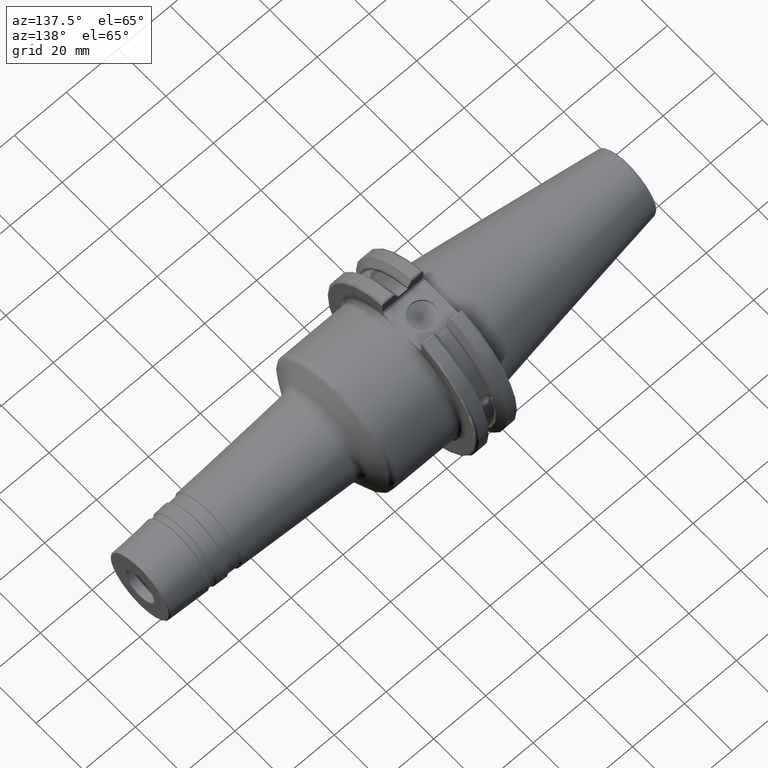
[diagram: clean part render]
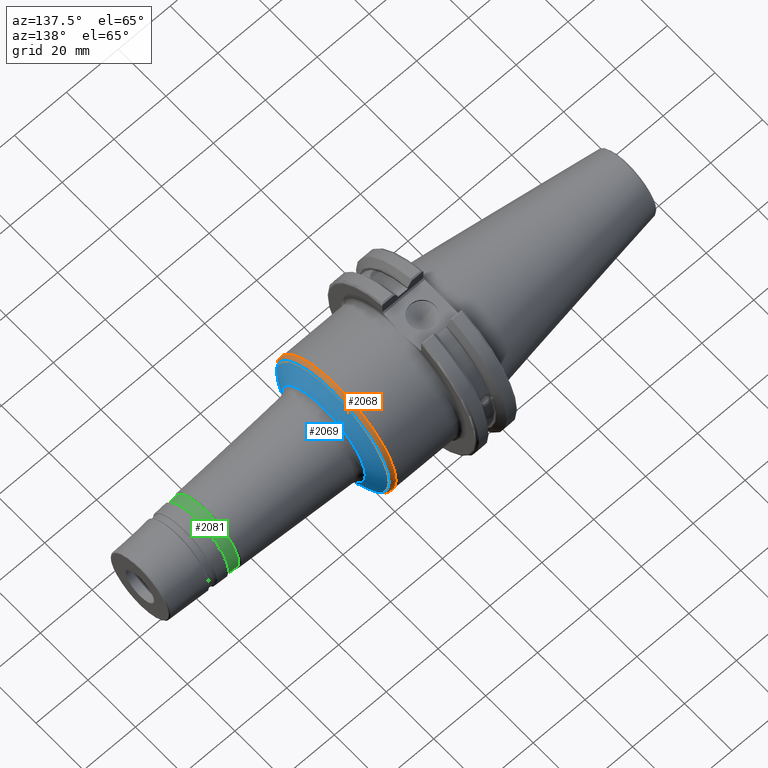
[diagram: same view with three faces highlighted in distinct colors, each labeled with its STEP entity id]
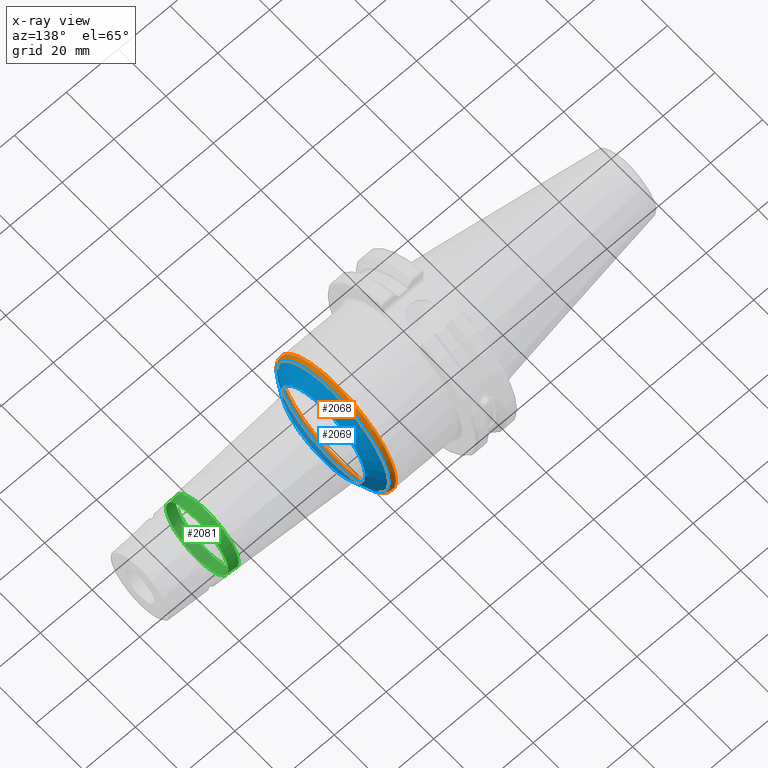
[diagram: x-ray of the same camera — body ghosted, the three highlighted faces saturated]
A machine part, auxiliary view with three faces highlighted in distinct colors.
The next image is the same camera in x-ray (body ghosted, the three faces saturated) — at least one of them is partly hidden behind the body in this view.
Their STEP definitions:

[orange] entity #2068 — the highlighted toroidal blend (fillet) surface has major radius 22.75 mm and minor (blend) radius 2 mm.
#85=TOROIDAL_SURFACE('',#2207,22.75,2.);
#187=FACE_OUTER_BOUND('',#295,.T.);
#295=EDGE_LOOP('',(#1394,#1395,#1396,#1397,#1398,#1399,#1400,#1401));
#615=CIRCLE('',#2202,24.75);
#616=CIRCLE('',#2203,24.75);
#619=CIRCLE('',#2206,24.75);
#620=CIRCLE('',#2208,23.75);
#621=CIRCLE('',#2209,23.75);
#622=CIRCLE('',#2210,2.);
#623=CIRCLE('',#2211,23.75);
#795=VERTEX_POINT('',#3305);
#796=VERTEX_POINT('',#3306);
#797=VERTEX_POINT('',#3308);
#799=VERTEX_POINT('',#3316);
#800=VERTEX_POINT('',#3317);
#801=VERTEX_POINT('',#3319);
#1039=EDGE_CURVE('',#795,#796,#615,.T.);
#1040=EDGE_CURVE('',#797,#795,#616,.T.);
#1044=EDGE_CURVE('',#796,#797,#619,.T.);
#1045=EDGE_CURVE('',#799,#800,#620,.T.);
#1046=EDGE_CURVE('',#800,#801,#621,.T.);
#1047=EDGE_CURVE('',#801,#796,#622,.T.);
#1048=EDGE_CURVE('',#801,#799,#623,.T.);
#1394=ORIENTED_EDGE('',*,*,#1045,.T.);
#1395=ORIENTED_EDGE('',*,*,#1046,.T.);
#1396=ORIENTED_EDGE('',*,*,#1047,.T.);
#1397=ORIENTED_EDGE('',*,*,#1044,.T.);
#1398=ORIENTED_EDGE('',*,*,#1040,.T.);
#1399=ORIENTED_EDGE('',*,*,#1039,.T.);
#1400=ORIENTED_EDGE('',*,*,#1047,.F.);
#1401=ORIENTED_EDGE('',*,*,#1048,.T.);
#2068=ADVANCED_FACE('',(#187),#85,.T.);
#2202=AXIS2_PLACEMENT_3D('',#3307,#2519,#2520);
#2203=AXIS2_PLACEMENT_3D('',#3309,#2521,#2522);
#2206=AXIS2_PLACEMENT_3D('',#3314,#2528,#2529);
#2207=AXIS2_PLACEMENT_3D('',#3315,#2530,#2531);
#2208=AXIS2_PLACEMENT_3D('',#3318,#2532,#2533);
#2209=AXIS2_PLACEMENT_3D('',#3320,#2534,#2535);
#2210=AXIS2_PLACEMENT_3D('',#3321,#2536,#2537);
#2211=AXIS2_PLACEMENT_3D('',#3322,#2538,#2539);
#2519=DIRECTION('center_axis',(1.,0.,0.));
#2520=DIRECTION('ref_axis',(0.,-1.,1.83697019872103E-16));
#2521=DIRECTION('center_axis',(1.,0.,0.));
#2522=DIRECTION('ref_axis',(0.,-1.,1.83697019872103E-16));
#2528=DIRECTION('center_axis',(1.,0.,0.));
#2529=DIRECTION('ref_axis',(0.,-1.,1.83697019872103E-16));
#2530=DIRECTION('center_axis',(1.,0.,0.));
#2531=DIRECTION('ref_axis',(0.,0.,-1.));
#2532=DIRECTION('center_axis',(-1.,0.,0.));
#2533=DIRECTION('ref_axis',(0.,-1.,3.06161699786838E-17));
#2534=DIRECTION('center_axis',(-1.,0.,0.));
#2535=DIRECTION('ref_axis',(0.,-1.,3.06161699786838E-17));
#2536=DIRECTION('center_axis',(0.,-1.,-1.22464679914735E-16));
#2537=DIRECTION('ref_axis',(0.,-1.22464679914735E-16,1.));
#2538=DIRECTION('center_axis',(-1.,0.,0.));
#2539=DIRECTION('ref_axis',(0.,-1.,3.06161699786838E-17));
#3305=CARTESIAN_POINT('',(43.8907938474164,24.75,-1.51550041394485E-15));
#3306=CARTESIAN_POINT('',(43.8907938474164,-3.0310008278897E-15,24.75));
#3307=CARTESIAN_POINT('Origin',(43.8907938474164,0.,0.));
#3308=CARTESIAN_POINT('',(43.8907938474164,-24.75,-3.0310008278897E-15));
#3309=CARTESIAN_POINT('Origin',(43.8907938474164,0.,0.));
#3314=CARTESIAN_POINT('Origin',(43.8907938474164,0.,0.));
#3315=CARTESIAN_POINT('Origin',(43.8907938474164,0.,0.));
#3316=CARTESIAN_POINT('',(45.6228446549853,23.75,-7.27134036993741E-15));
#3317=CARTESIAN_POINT('',(45.6228446549853,-23.75,-2.90853614797496E-15));
#3318=CARTESIAN_POINT('Origin',(45.6228446549853,0.,-3.6356701849687E-15));
#3319=CARTESIAN_POINT('',(45.6228446549853,-2.90853614797496E-15,23.75));
#3320=CARTESIAN_POINT('Origin',(45.6228446549853,0.,-3.6356701849687E-15));
#3321=CARTESIAN_POINT('Origin',(43.8907938474164,-2.78607146806023E-15,
22.75));
#3322=CARTESIAN_POINT('Origin',(45.6228446549853,0.,-3.6356701849687E-15));

[blue] entity #2069 — the highlighted conical surface has half-angle 60 deg.
#188=FACE_OUTER_BOUND('',#296,.T.);
#296=EDGE_LOOP('',(#1402,#1403,#1404,#1405,#1406,#1407,#1408,#1409));
#415=LINE('',#3329,#514);
#514=VECTOR('',#2546,20.4592722749064);
#620=CIRCLE('',#2208,23.75);
#621=CIRCLE('',#2209,23.75);
#623=CIRCLE('',#2211,23.75);
#624=CIRCLE('',#2213,17.5791848368622);
#625=CIRCLE('',#2214,17.5791848368622);
#626=CIRCLE('',#2215,17.5791848368622);
#799=VERTEX_POINT('',#3316);
#800=VERTEX_POINT('',#3317);
#801=VERTEX_POINT('',#3319);
#802=VERTEX_POINT('',#3324);
#803=VERTEX_POINT('',#3325);
#804=VERTEX_POINT('',#3327);
#1045=EDGE_CURVE('',#799,#800,#620,.T.);
#1046=EDGE_CURVE('',#800,#801,#621,.T.);
#1048=EDGE_CURVE('',#801,#799,#623,.T.);
#1049=EDGE_CURVE('',#802,#803,#624,.T.);
#1050=EDGE_CURVE('',#804,#802,#625,.T.);
#1051=EDGE_CURVE('',#804,#800,#415,.T.);
#1052=EDGE_CURVE('',#803,#804,#626,.T.);
#1402=ORIENTED_EDGE('',*,*,#1049,.F.);
#1403=ORIENTED_EDGE('',*,*,#1050,.F.);
#1404=ORIENTED_EDGE('',*,*,#1051,.T.);
#1405=ORIENTED_EDGE('',*,*,#1045,.F.);
#1406=ORIENTED_EDGE('',*,*,#1048,.F.);
#1407=ORIENTED_EDGE('',*,*,#1046,.F.);
#1408=ORIENTED_EDGE('',*,*,#1051,.F.);
#1409=ORIENTED_EDGE('',*,*,#1052,.F.);
#2042=CONICAL_SURFACE('',#2212,20.4592722749064,1.0471975511966);
#2069=ADVANCED_FACE('',(#188),#2042,.T.);
#2208=AXIS2_PLACEMENT_3D('',#3318,#2532,#2533);
#2209=AXIS2_PLACEMENT_3D('',#3320,#2534,#2535);
#2211=AXIS2_PLACEMENT_3D('',#3322,#2538,#2539);
#2212=AXIS2_PLACEMENT_3D('',#3323,#2540,#2541);
#2213=AXIS2_PLACEMENT_3D('',#3326,#2542,#2543);
#2214=AXIS2_PLACEMENT_3D('',#3328,#2544,#2545);
#2215=AXIS2_PLACEMENT_3D('',#3330,#2547,#2548);
#2532=DIRECTION('center_axis',(-1.,0.,0.));
#2533=DIRECTION('ref_axis',(0.,-1.,3.06161699786838E-17));
#2534=DIRECTION('center_axis',(-1.,0.,0.));
#2535=DIRECTION('ref_axis',(0.,-1.,3.06161699786838E-17));
#2538=DIRECTION('center_axis',(-1.,0.,0.));
#2539=DIRECTION('ref_axis',(0.,-1.,3.06161699786838E-17));
#2540=DIRECTION('center_axis',(-1.,0.,0.));
#2541=DIRECTION('ref_axis',(0.,1.,0.));
#2542=DIRECTION('center_axis',(1.,0.,0.));
#2543=DIRECTION('ref_axis',(0.,-1.,3.06161699786838E-17));
#2544=DIRECTION('center_axis',(1.,0.,0.));
#2545=DIRECTION('ref_axis',(0.,-1.,3.06161699786838E-17));
#2546=DIRECTION('',(-0.5,-0.866025403784439,-1.06057523872491E-16));
#2547=DIRECTION('center_axis',(1.,0.,0.));
#2548=DIRECTION('ref_axis',(0.,-1.,3.06161699786838E-17));
#3316=CARTESIAN_POINT('',(45.6228446549853,23.75,-7.27134036993741E-15));
#3317=CARTESIAN_POINT('',(45.6228446549853,-23.75,-2.90853614797496E-15));
#3318=CARTESIAN_POINT('Origin',(45.6228446549853,0.,-3.6356701849687E-15));
#3319=CARTESIAN_POINT('',(45.6228446549853,-2.90853614797496E-15,23.75));
#3320=CARTESIAN_POINT('Origin',(45.6228446549853,0.,-3.6356701849687E-15));
#3322=CARTESIAN_POINT('Origin',(45.6228446549853,0.,-3.6356701849687E-15));
#3323=CARTESIAN_POINT('Origin',(47.5227471928978,0.,0.));
#3324=CARTESIAN_POINT('',(49.1855664505423,17.5791848368622,-1.07641462210415E-15));
#3325=CARTESIAN_POINT('',(49.1855664505423,-2.1528292442083E-15,17.5791848368622));
#3326=CARTESIAN_POINT('Origin',(49.1855664505423,0.,-2.69103655526037E-15));
#3327=CARTESIAN_POINT('',(49.1855664505423,-17.5791848368622,-2.1528292442083E-15));
#3328=CARTESIAN_POINT('Origin',(49.1855664505423,0.,-2.69103655526037E-15));
#3329=CARTESIAN_POINT('',(47.5227471928978,-20.4592722749064,-2.50553823043483E-15));
#3330=CARTESIAN_POINT('Origin',(49.1855664505423,0.,-2.69103655526037E-15));

[green] entity #2081 — the highlighted conical surface has half-angle 3 deg.
#200=FACE_OUTER_BOUND('',#309,.T.);
#309=EDGE_LOOP('',(#1493,#1494,#1495,#1496,#1497,#1498,#1499,#1500));
#421=LINE('',#3434,#520);
#520=VECTOR('',#2668,13.2564541224331);
#665=CIRCLE('',#2265,13.1578254456323);
#670=CIRCLE('',#2270,13.1578254456323);
#671=CIRCLE('',#2271,13.1578254456323);
#672=CIRCLE('',#2273,13.355082799234);
#673=CIRCLE('',#2274,13.355082799234);
#674=CIRCLE('',#2275,13.355082799234);
#839=VERTEX_POINT('',#3419);
#840=VERTEX_POINT('',#3420);
#844=VERTEX_POINT('',#3429);
#845=VERTEX_POINT('',#3433);
#846=VERTEX_POINT('',#3435);
#847=VERTEX_POINT('',#3437);
#1096=EDGE_CURVE('',#839,#840,#665,.T.);
#1101=EDGE_CURVE('',#840,#844,#670,.T.);
#1102=EDGE_CURVE('',#844,#839,#671,.T.);
#1103=EDGE_CURVE('',#844,#845,#421,.T.);
#1104=EDGE_CURVE('',#846,#845,#672,.T.);
#1105=EDGE_CURVE('',#847,#846,#673,.T.);
#1106=EDGE_CURVE('',#845,#847,#674,.T.);
#1493=ORIENTED_EDGE('',*,*,#1096,.F.);
#1494=ORIENTED_EDGE('',*,*,#1102,.F.);
#1495=ORIENTED_EDGE('',*,*,#1103,.T.);
#1496=ORIENTED_EDGE('',*,*,#1104,.F.);
#1497=ORIENTED_EDGE('',*,*,#1105,.F.);
#1498=ORIENTED_EDGE('',*,*,#1106,.F.);
#1499=ORIENTED_EDGE('',*,*,#1103,.F.);
#1500=ORIENTED_EDGE('',*,*,#1101,.F.);
#2048=CONICAL_SURFACE('',#2272,13.2564541224331,0.0523598775598286);
#2081=ADVANCED_FACE('',(#200),#2048,.T.);
#2265=AXIS2_PLACEMENT_3D('',#3421,#2652,#2653);
#2270=AXIS2_PLACEMENT_3D('',#3430,#2662,#2663);
#2271=AXIS2_PLACEMENT_3D('',#3431,#2664,#2665);
#2272=AXIS2_PLACEMENT_3D('',#3432,#2666,#2667);
#2273=AXIS2_PLACEMENT_3D('',#3436,#2669,#2670);
#2274=AXIS2_PLACEMENT_3D('',#3438,#2671,#2672);
#2275=AXIS2_PLACEMENT_3D('',#3439,#2673,#2674);
#2652=DIRECTION('center_axis',(1.,0.,0.));
#2653=DIRECTION('ref_axis',(0.,-1.,3.06161699786838E-17));
#2662=DIRECTION('center_axis',(1.,0.,0.));
#2663=DIRECTION('ref_axis',(0.,-1.,3.06161699786838E-17));
#2664=DIRECTION('center_axis',(1.,0.,0.));
#2665=DIRECTION('ref_axis',(0.,-1.,3.06161699786838E-17));
#2666=DIRECTION('center_axis',(-1.,0.,0.));
#2667=DIRECTION('ref_axis',(0.,1.,0.));
#2668=DIRECTION('',(-0.998629534754574,-0.0523359562429425,-6.40930612932355E-18));
#2669=DIRECTION('center_axis',(-1.,0.,0.));
#2670=DIRECTION('ref_axis',(0.,-1.,3.06161699786838E-17));
#2671=DIRECTION('center_axis',(-1.,0.,0.));
#2672=DIRECTION('ref_axis',(0.,-1.,3.06161699786838E-17));
#2673=DIRECTION('center_axis',(-1.,0.,0.));
#2674=DIRECTION('ref_axis',(0.,-1.,3.06161699786838E-17));
#3419=CARTESIAN_POINT('',(97.8942814505757,13.1578254456323,-8.05684440786659E-16));
#3420=CARTESIAN_POINT('',(97.8942814505757,-1.61136888157332E-15,13.1578254456323));
#3421=CARTESIAN_POINT('Origin',(97.8942814505757,0.,-2.01421110196665E-15));
#3429=CARTESIAN_POINT('',(97.8942814505757,-13.1578254456323,-1.61136888157332E-15));
#3430=CARTESIAN_POINT('Origin',(97.8942814505757,0.,-2.01421110196665E-15));
#3431=CARTESIAN_POINT('Origin',(97.8942814505757,0.,-2.01421110196665E-15));
#3432=CARTESIAN_POINT('Origin',(96.0123341872088,0.,0.));
#3433=CARTESIAN_POINT('',(94.1303869238419,-13.355082799234,-1.63552594024298E-15));
#3434=CARTESIAN_POINT('',(96.0123341872088,-13.2564541224331,-1.62344741090815E-15));
#3435=CARTESIAN_POINT('',(94.1303869238419,13.355082799234,-4.08881485060745E-15));
#3436=CARTESIAN_POINT('Origin',(94.1303869238419,0.,-2.04440742530372E-15));
#3437=CARTESIAN_POINT('',(94.1303869238419,-1.63552594024298E-15,13.355082799234));
#3438=CARTESIAN_POINT('Origin',(94.1303869238419,0.,-2.04440742530372E-15));
#3439=CARTESIAN_POINT('Origin',(94.1303869238419,0.,-2.04440742530372E-15));